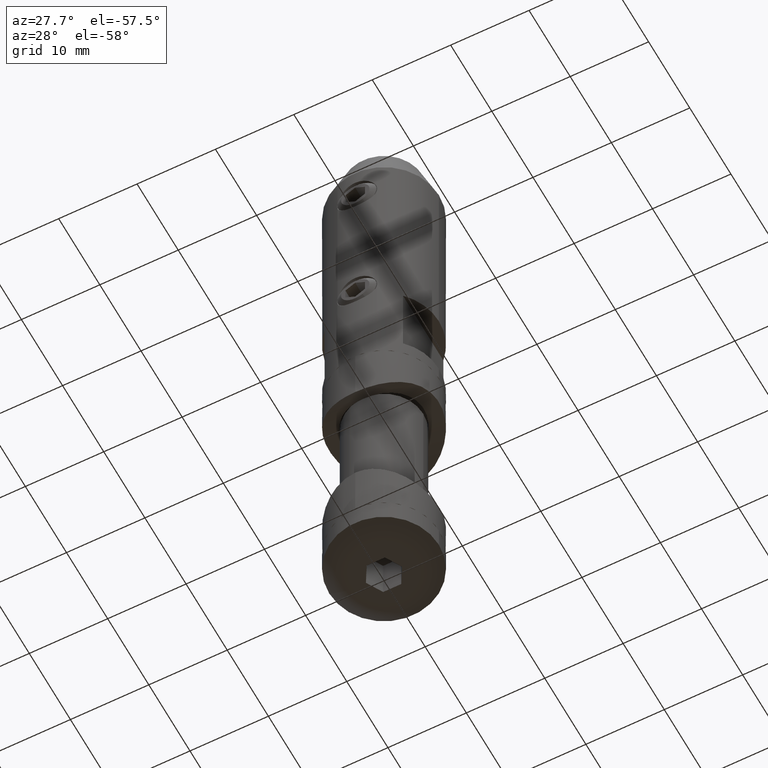
[diagram: clean part render]
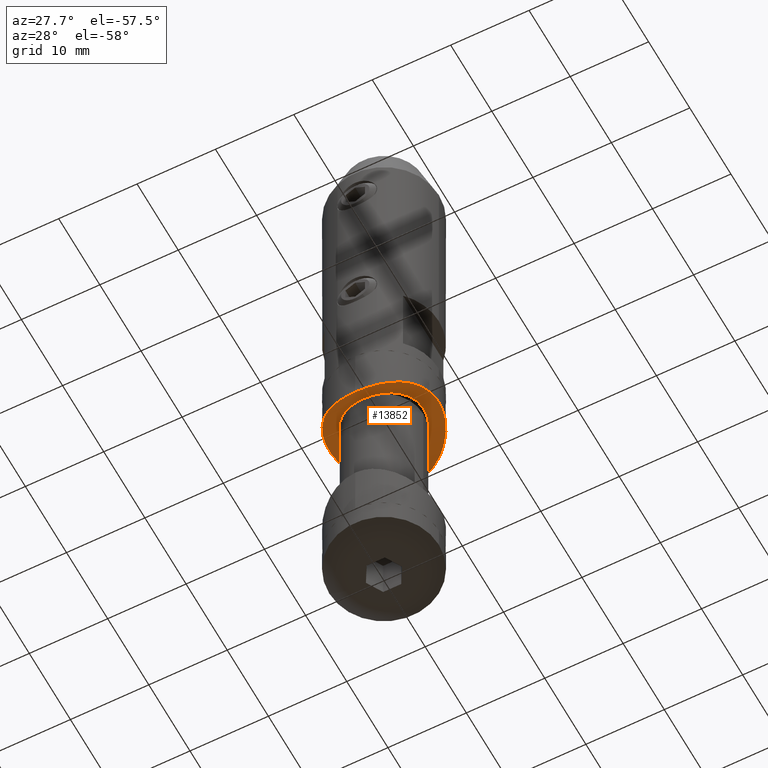
[diagram: same view with one face highlighted and labeled with its STEP entity id]
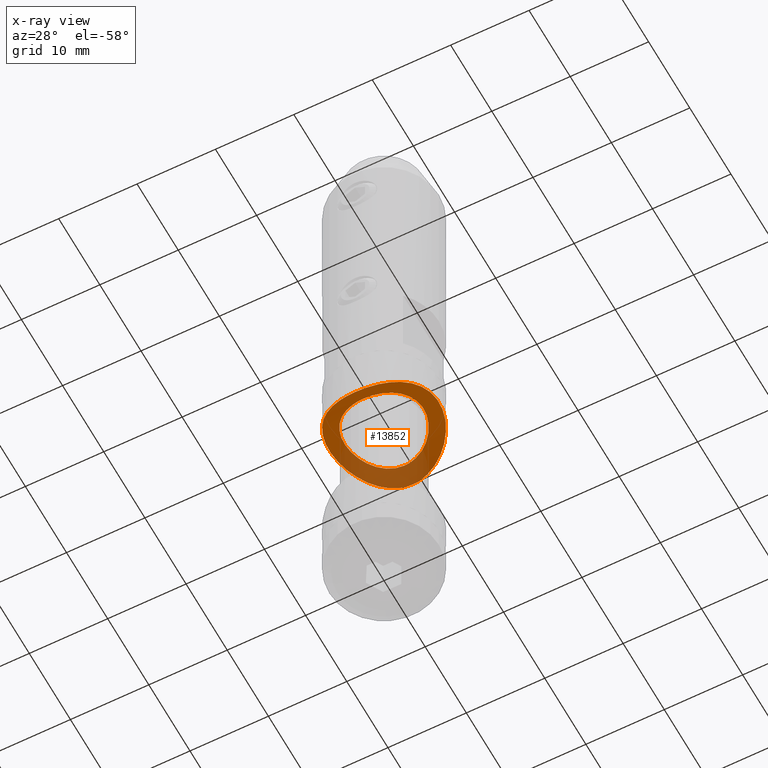
[diagram: x-ray of the same camera — body ghosted, the highlighted face saturated]
A machine part, auxiliary view. The second image highlights one B-rep face of the part: STEP entity #13852.
The next image is the same camera in x-ray: the body ghosted, the highlighted face saturated — about 37% of this face is hidden behind the body in this view.
In plain terms, the highlighted cylindrical surface (partial cylindrical patch) has radius 11 mm, axis along (-1, 0, 0).
Its self-contained STEP definition (entity closure, byte-faithful):
#58 = CARTESIAN_POINT ( 'NONE',  ( 0.8347342870917892066, 4.983315160867518578, 5.030493681191865463 ) ) ;
#132 = CARTESIAN_POINT ( 'NONE',  ( -1.798898134684533190, 4.721600766779466163, 5.146994634045535477 ) ) ;
#161 = CARTESIAN_POINT ( 'NONE',  ( 4.302957743383328371, -5.539326587374739042, 5.868803495781969026 ) ) ;
#223 = CARTESIAN_POINT ( 'NONE',  ( -7.000000000000284217, -0.4763624378593324660, 7.514718625761431348 ) ) ;
#288 = VERTEX_POINT ( 'NONE', #7388 ) ;
#433 = CARTESIAN_POINT ( 'NONE',  ( -3.738745410604529695, -5.922185817696358434, 5.652949233903943771 ) ) ;
#597 = CARTESIAN_POINT ( 'NONE',  ( 5.114907288801578744, 4.784046224947594794, 6.259948611788000328 ) ) ;
#649 = CYLINDRICAL_SURFACE ( 'NONE', #12547, 11.00000000000000000 ) ;
#664 = CARTESIAN_POINT ( 'NONE',  ( 4.531019783210669338, -2.254405599126572124, 5.975539323838369832 ) ) ;
#727 = CARTESIAN_POINT ( 'NONE',  ( 2.546797807824404902, -4.372993003360093667, 5.295211678164507774 ) ) ;
#730 = CARTESIAN_POINT ( 'NONE',  ( 2.301034675769405347, 6.626992172020193195, 5.234467967776039288 ) ) ;
#799 = CARTESIAN_POINT ( 'NONE',  ( 6.763632749686718348, 1.862951637489550949, 7.324308792532637113 ) ) ;
#1072 = CARTESIAN_POINT ( 'NONE',  ( -5.050000000000141931, -9.244463733058732095E-30, 6.227717769118616964 ) ) ;
#1191 = CARTESIAN_POINT ( 'NONE',  ( -4.885038734902628299, 1.322631328272658724, 6.143946356408126697 ) ) ;
#1445 = CARTESIAN_POINT ( 'NONE',  ( 3.346012908547002063, 3.796378999838738277, 5.518435895400592983 ) ) ;
#1721 = CARTESIAN_POINT ( 'NONE',  ( 6.812274545733001396, -1.627136497544569682, 7.363074465144524794 ) ) ;
#1794 = CARTESIAN_POINT ( 'NONE',  ( -7.000000000000284217, -9.244463733058732095E-30, 7.514718625761432236 ) ) ;
#1809 = CARTESIAN_POINT ( 'NONE',  ( -6.765964257790813896, 1.854074947819542851, 7.326140929028419180 ) ) ;
#1858 = CARTESIAN_POINT ( 'NONE',  ( 6.999999999999996447, -0.4740943276049978117, 7.514718625761454440 ) ) ;
#1872 = CARTESIAN_POINT ( 'NONE',  ( -7.000000000000284217, -9.244463733058732095E-30, 7.514718625761432236 ) ) ;
#2149 = CARTESIAN_POINT ( 'NONE',  ( 7.000000000000004441, -5.723021685032325300E-14, 7.514718625761387827 ) ) ;
#2218 = CARTESIAN_POINT ( 'NONE',  ( -1.325247053648522133, -4.884574948943930295, 5.075116484067814682 ) ) ;
#2221 = CARTESIAN_POINT ( 'NONE',  ( 1.849171311116351024, 6.767508011685089642, 5.146708090684417591 ) ) ;
#2297 = CARTESIAN_POINT ( 'NONE',  ( -0.4907799386418351673, 6.998898104596894321, 5.000701205087874079 ) ) ;
#2372 = CARTESIAN_POINT ( 'NONE',  ( -0.3309924527476572620, -5.050159809286224544, 4.999926633016219313 ) ) ;
#2374 = CARTESIAN_POINT ( 'NONE',  ( 7.000000000000002665, 0.2377497690112485296, 7.514718625761418025 ) ) ;
#2701 = VERTEX_POINT ( 'NONE', #3272 ) ;
#3074 = CARTESIAN_POINT ( 'NONE',  ( 5.049999999999999822, 6.183411203961693989E-16, 6.227717769118619628 ) ) ;
#3133 = CARTESIAN_POINT ( 'NONE',  ( 4.377306081229053625, 2.539582479675894788, 5.906521603887060046 ) ) ;
#3151 = EDGE_LOOP ( 'NONE', ( #5191, #11734 ) ) ;
#3190 = CARTESIAN_POINT ( 'NONE',  ( 1.644014135615404992, 4.786504532583993665, 5.119070170647719742 ) ) ;
#3272 = CARTESIAN_POINT ( 'NONE',  ( -5.050000000000141931, -9.244463733058732095E-30, 6.227717769118616964 ) ) ;
#3296 = CARTESIAN_POINT ( 'NONE',  ( -6.052226204783508479, -3.545188428060873420, 6.809991856603720528 ) ) ;
#3354 = CARTESIAN_POINT ( 'NONE',  ( -0.9295944337245134470, -6.941983683191890186, 5.036843005532409379 ) ) ;
#3418 = CARTESIAN_POINT ( 'NONE',  ( 5.277947180286361117, -4.619883079932325387, 6.342453332013024081 ) ) ;
#3489 = CARTESIAN_POINT ( 'NONE',  ( 5.558983717407167902, -4.277416846365695413, 6.503500197077546119 ) ) ;
#3710 = CARTESIAN_POINT ( 'NONE',  ( 4.010594253488467764, -3.086069846067138300, 5.755306121692768784 ) ) ;
#3712 = CARTESIAN_POINT ( 'NONE',  ( 4.300644525004608809, 5.541751699449870117, 5.867539799732574224 ) ) ;
#3849 = CARTESIAN_POINT ( 'NONE',  ( 1.644815588714458876, -4.785966290671257006, 5.119291178394015596 ) ) ;
#3851 = CARTESIAN_POINT ( 'NONE',  ( 6.904112164166043897, 1.177949242828133514, 7.436307939935931977 ) ) ;
#3903 = CARTESIAN_POINT ( 'NONE',  ( 7.000000000000004441, -5.723021685032325300E-14, 7.514718625761387827 ) ) ;
#3995 = CARTESIAN_POINT ( 'NONE',  ( -5.015336873282027597, -0.6775477329682444427, 6.209604506756885911 ) ) ;
#4034 = B_SPLINE_CURVE_WITH_KNOTS ( 'NONE', 3,
 ( #11201, #1858, #12859, #1721, #15865, #8144, #12789, #11144, #6490, #3489, #3418, #14345, #161, #8002, #15928, #4774, #17489, #14412, #17354, #6619, #5033, #3354, #9580, #17292, #12657, #14155, #11349, #17552, #433, #8225, #12597, #15736, #6356, #7941, #18855, #3296, #14216, #4834, #6420, #18925, #223, #1794 ),
 .UNSPECIFIED., .F., .F.,
 ( 4, 2, 2, 2, 2, 2, 2, 2, 2, 2, 2, 2, 2, 2, 2, 2, 2, 2, 2, 2, 4 ),
 ( 0.02253123587157023974, 0.02393527655227489434, 0.02463729689262722511, 0.02533931723297955241, 0.02674335791368420701, 0.02814739859438886507, 0.02955143927509352314, 0.03095547995579818121, 0.03235952063650283927, 0.03376356131720749387, 0.03446558165755982117, 0.03516760199791215541, 0.03657164267861681001, 0.03727366301896913731, 0.03797568335932146460, 0.03867770369967379190, 0.03937972404002612614, 0.04078376472073078074, 0.04218780540143544922, 0.04359184608214010381, 0.04499588676284476535 ),
 .UNSPECIFIED. ) ;
#4060 = CARTESIAN_POINT ( 'NONE',  ( -4.523421857255739198, -2.251258128524327606, 5.972741108334475690 ) ) ;
#4556 = CARTESIAN_POINT ( 'NONE',  ( 0.6694115758952835504, 5.008267232178823747, 5.019106629645234463 ) ) ;
#4749 = CARTESIAN_POINT ( 'NONE',  ( 5.017264493785554613, 0.6656149110418781989, 6.210587786190290061 ) ) ;
#4774 = CARTESIAN_POINT ( 'NONE',  ( 2.313820538208837707, -6.622735270713296707, 5.237110732547023417 ) ) ;
#4834 = CARTESIAN_POINT ( 'NONE',  ( -6.624192190383780598, -2.307918029003276583, 7.215481015150577271 ) ) ;
#4916 = CARTESIAN_POINT ( 'NONE',  ( -6.273426768740709925, 3.138526888149929306, 6.961660900673267705 ) ) ;
#5033 = CARTESIAN_POINT ( 'NONE',  ( -0.4616743109381308829, -6.988715196624761816, 5.007192627578020527 ) ) ;
#5112 = CARTESIAN_POINT ( 'NONE',  ( -6.951654864948971557, 0.9435893643243959961, 7.474239144838221272 ) ) ;
#5191 = ORIENTED_EDGE ( 'NONE', *, *, #6446, .T. ) ;
#5194 = CARTESIAN_POINT ( 'NONE',  ( 0.2214254515694320802, 7.000523600136869362, 4.999666800438288483 ) ) ;
#5261 = CARTESIAN_POINT ( 'NONE',  ( 0.6698125511099018992, -5.008192777544311802, 5.019140554059224435 ) ) ;
#5263 = CARTESIAN_POINT ( 'NONE',  ( 1.161837405269506185, 6.906864965397544687, 5.059091500456442958 ) ) ;
#5334 = CARTESIAN_POINT ( 'NONE',  ( -2.546378848194947420, -4.373241396607924436, 5.295110327002082506 ) ) ;
#5407 = CARTESIAN_POINT ( 'NONE',  ( 6.987680589103055340, 0.4774160419172169822, 7.504514137652255279 ) ) ;
#5486 = CARTESIAN_POINT ( 'NONE',  ( -4.649793783628306976, 5.251334342229204033, 6.024906302003863345 ) ) ;
#5917 = CARTESIAN_POINT ( 'NONE',  ( -7.000000000000284217, -9.244463733058732095E-30, 7.514718625761432236 ) ) ;
#5931 = CARTESIAN_POINT ( 'NONE',  ( -5.050000000000141931, -9.244463733058732095E-30, 6.227717769118616964 ) ) ;
#6059 = CARTESIAN_POINT ( 'NONE',  ( -1.324074876012344193, 4.876188760810965306, 5.078792124039382294 ) ) ;
#6109 = B_SPLINE_CURVE_WITH_KNOTS ( 'NONE', 3,
 ( #1872, #9592, #5112, #1809, #14302, #4916, #12807, #6997, #10083, #5486, #19440, #8371, #6926, #11654, #16231, #19294, #2297, #5194, #8514, #14805, #5263, #2221, #730, #13306, #13233, #3712, #16150, #597, #17712, #9941, #14589, #13158, #6781, #11506, #799, #3851, #13007, #5407, #2374, #2149 ),
 .UNSPECIFIED., .F., .F.,
 ( 4, 2, 2, 2, 2, 2, 2, 2, 2, 2, 2, 2, 2, 2, 2, 2, 2, 2, 2, 4 ),
 ( 0.000000000000000000, 0.001408202241973139767, 0.002816404483946279534, 0.004224606725919418868, 0.005632808967892559068, 0.007041011209865698402, 0.008449213451838837735, 0.009857415693811977936, 0.01126561793578511814, 0.01196971905677168650, 0.01267382017775825660, 0.01408202241973139680, 0.01549022466170453700, 0.01689842690367767547, 0.01760252802466424557, 0.01830662914565081567, 0.01971483138762395587, 0.02112303362959709954, 0.02182713475058366964, 0.02253123587157023974 ),
 .UNSPECIFIED. ) ;
#6130 = CARTESIAN_POINT ( 'NONE',  ( 2.547008003639354090, 4.372918478376748297, 5.295247978829205948 ) ) ;
#6356 = CARTESIAN_POINT ( 'NONE',  ( -4.801024735240244645, -5.099024646223536017, 6.101446781323081936 ) ) ;
#6420 = CARTESIAN_POINT ( 'NONE',  ( -6.761740977554861587, -1.870689667826440639, 7.322816668642889049 ) ) ;
#6446 = EDGE_CURVE ( 'NONE', #2701, #288, #10794, .T. ) ;
#6490 = CARTESIAN_POINT ( 'NONE',  ( 6.056531478097463506, -3.537940262749728948, 6.812822254243739550 ) ) ;
#6619 = CARTESIAN_POINT ( 'NONE',  ( -0.2271689663048469532, -7.000260248264503993, 4.999834387531060464 ) ) ;
#6781 = CARTESIAN_POINT ( 'NONE',  ( 6.269507857867425926, 3.146234964335936635, 6.958936000710156833 ) ) ;
#6926 = CARTESIAN_POINT ( 'NONE',  ( -3.163060452404388823, 6.261350458648621498, 5.455611984914543022 ) ) ;
#6997 = CARTESIAN_POINT ( 'NONE',  ( -5.557449205181134388, 4.279761006885696162, 6.502534725485556777 ) ) ;
#7057 = CARTESIAN_POINT ( 'NONE',  ( -3.088759460282020086, -4.008597079784670392, 5.438831828528124746 ) ) ;
#7388 = CARTESIAN_POINT ( 'NONE',  ( 5.049999999999999822, 6.183411203961693989E-16, 6.227717769118619628 ) ) ;
#7517 = CARTESIAN_POINT ( 'NONE',  ( -4.375843760810009364, 2.542091483315129352, 5.905885472017380344 ) ) ;
#7649 = CARTESIAN_POINT ( 'NONE',  ( 1.324288223313524693, 4.884629565474531532, 5.075089861455793105 ) ) ;
#7845 = CARTESIAN_POINT ( 'NONE',  ( -1.643346076912448162, 4.778054497370530562, 5.122253476995908272 ) ) ;
#7911 = CARTESIAN_POINT ( 'NONE',  ( -0.3381648408169122266, 5.049801814264135658, 5.000090985257237719 ) ) ;
#7941 = CARTESIAN_POINT ( 'NONE',  ( -5.273991696881241253, -4.624345898174418323, 6.340300785909568582 ) ) ;
#7977 = DIRECTION ( 'NONE',  ( -1.183291357831474618E-30, 1.000000000000000000, 3.004563560701657287E-35 ) ) ;
#8002 = CARTESIAN_POINT ( 'NONE',  ( 3.563861619915402290, -6.041396753817215526, 5.585804001147470998 ) ) ;
#8144 = CARTESIAN_POINT ( 'NONE',  ( 6.617060154661993820, -2.295148674237948327, 7.212399313888086638 ) ) ;
#8225 = CARTESIAN_POINT ( 'NONE',  ( -4.110904691520238963, -5.670182071316340000, 5.795092385586124273 ) ) ;
#8359 = EDGE_CURVE ( 'NONE', #8442, #18681, #4034, .T. ) ;
#8367 = CARTESIAN_POINT ( 'NONE',  ( 5.049999999999999822, -0.3332332835288888129, 6.227717769118636504 ) ) ;
#8371 = CARTESIAN_POINT ( 'NONE',  ( -3.558049577198596491, 6.044979889134974194, 5.583740064937725123 ) ) ;
#8442 = VERTEX_POINT ( 'NONE', #3903 ) ;
#8514 = CARTESIAN_POINT ( 'NONE',  ( 0.4606742574264122703, 6.988804917288322649, 5.007135663298367234 ) ) ;
#8656 = CARTESIAN_POINT ( 'NONE',  ( -3.804640107169164231, -3.336934319767951074, 5.675999726451558480 ) ) ;
#8726 = CARTESIAN_POINT ( 'NONE',  ( -4.786646975128507009, -1.643126827578287319, 6.095059610140738826 ) ) ;
#8932 = B_SPLINE_CURVE_WITH_KNOTS ( 'NONE', 3,
 ( #11712, #8367, #13003, #16145, #13229, #664, #11576, #3710, #17919, #14867, #19291, #727, #14656, #3849, #10009, #19504, #5261, #14725, #11652, #2372, #16226, #2218, #16443, #13156, #5334, #7057, #17991, #8656, #9867, #19654, #16707, #4060, #10422, #8726, #18195, #3995, #14933, #1072 ),
 .UNSPECIFIED., .F., .F.,
 ( 4, 2, 2, 2, 2, 2, 2, 2, 2, 2, 2, 2, 2, 2, 2, 2, 2, 2, 4 ),
 ( 0.01601497281934123607, 0.01701466347767280687, 0.01801435413600437768, 0.01901404479433595196, 0.02001373545266751930, 0.02101342611099909358, 0.02201311676933066439, 0.02301280742766223519, 0.02351265275682802580, 0.02401249808599380947, 0.02501218874432538028, 0.02601187940265695109, 0.02701157006098852537, 0.02801126071932009617, 0.02901095137765166698, 0.02951079670681745412, 0.03001064203598324126, 0.03101033269431481207, 0.03201002335264638288 ),
 .UNSPECIFIED. ) ;
#9032 = CARTESIAN_POINT ( 'NONE',  ( -5.050000000000141043, 0.3388950582306048398, 6.227717769118617852 ) ) ;
#9089 = CARTESIAN_POINT ( 'NONE',  ( -4.009961088409433216, 3.087142659159995084, 5.755032025794676542 ) ) ;
#9296 = CARTESIAN_POINT ( 'NONE',  ( -1.160357236858920338, 4.917717042105977931, 5.060138163516199938 ) ) ;
#9487 = CARTESIAN_POINT ( 'NONE',  ( 3.090260536766618049, 4.007487442779405384, 5.439258765585370803 ) ) ;
#9580 = CARTESIAN_POINT ( 'NONE',  ( -1.164191950391297414, -6.906543958800002159, 5.059295683047658088 ) ) ;
#9592 = CARTESIAN_POINT ( 'NONE',  ( -7.000000000000284217, 0.4777743709310715570, 7.514718625761435788 ) ) ;
#9687 = CARTESIAN_POINT ( 'NONE',  ( 2.619264724366640760E-28, -7.000000000000284217, 16.00000000000000000 ) ) ;
#9867 = CARTESIAN_POINT ( 'NONE',  ( -4.011150246812941411, -3.085277370897202331, 5.755531755659331949 ) ) ;
#9941 = CARTESIAN_POINT ( 'NONE',  ( 5.548354116399063507, 4.273845609058724015, 6.500402019132683229 ) ) ;
#10009 = CARTESIAN_POINT ( 'NONE',  ( 1.329451371967022011, -4.883332328652869592, 5.075672463676657031 ) ) ;
#10083 = CARTESIAN_POINT ( 'NONE',  ( -5.275968328933357654, 4.621823535817484618, 6.341468294499327918 ) ) ;
#10120 = ORIENTED_EDGE ( 'NONE', *, *, #8359, .F. ) ;
#10422 = CARTESIAN_POINT ( 'NONE',  ( -4.595284630925085878, -2.100761271488811310, 6.005585684564774596 ) ) ;
#10781 = CARTESIAN_POINT ( 'NONE',  ( 4.011643289364756448, 3.084964476089852248, 5.755692664681569148 ) ) ;
#10794 = B_SPLINE_CURVE_WITH_KNOTS ( 'NONE', 3,
 ( #5931, #9032, #19906, #1191, #15314, #16876, #7517, #9089, #20033, #15581, #17137, #12568, #15439, #132, #7845, #6059, #9296, #17204, #7911, #14074, #12375, #4556, #58, #7649, #3190, #17072, #6130, #9487, #1445, #10987, #10781, #3133, #18637, #18826, #14129, #4749, #11055, #3074 ),
 .UNSPECIFIED., .F., .F.,
 ( 4, 2, 2, 2, 2, 2, 2, 2, 2, 2, 2, 2, 2, 2, 2, 2, 2, 2, 4 ),
 ( 0.000000000000000000, 0.001000935801208827905, 0.002001871602417655809, 0.003002807403626483497, 0.004003743204835311618, 0.005004679006044138873, 0.006005614807252965259, 0.006506082707857379320, 0.007006550608461791646, 0.008007486409670618033, 0.008507954310275031226, 0.009008422210879444419, 0.01000935801208827428, 0.01101029381329710240, 0.01201122961450592878, 0.01301216541571475864, 0.01401310121692358503, 0.01501403701813241315, 0.01601497281934123607 ),
 .UNSPECIFIED. ) ;
#10987 = CARTESIAN_POINT ( 'NONE',  ( 3.805383662286298652, 3.335768438813500048, 5.676335745202010230 ) ) ;
#11055 = CARTESIAN_POINT ( 'NONE',  ( 5.050000000000001599, 0.3336483349710467339, 6.227717769118606306 ) ) ;
#11144 = CARTESIAN_POINT ( 'NONE',  ( 6.273866739672759429, -3.137677219901788828, 6.961965779511344543 ) ) ;
#11201 = CARTESIAN_POINT ( 'NONE',  ( 7.000000000000004441, -5.723021685032325300E-14, 7.514718625761387827 ) ) ;
#11349 = CARTESIAN_POINT ( 'NONE',  ( -3.144431679818662229, -6.258171158556381286, 5.456902873018733224 ) ) ;
#11506 = CARTESIAN_POINT ( 'NONE',  ( 6.622956682125623828, 2.311269784633307012, 7.214556823597193969 ) ) ;
#11576 = CARTESIAN_POINT ( 'NONE',  ( 4.373964812536534019, -2.545019681576510706, 5.905097784275818995 ) ) ;
#11652 = CARTESIAN_POINT ( 'NONE',  ( 0.1691402037588732310, -5.049919218883492711, 5.000037085872841125 ) ) ;
#11654 = CARTESIAN_POINT ( 'NONE',  ( -2.320867787877572308, 6.619896804541308022, 5.238836366385117849 ) ) ;
#11712 = CARTESIAN_POINT ( 'NONE',  ( 5.049999999999999822, 6.183411203961693989E-16, 6.227717769118619628 ) ) ;
#11734 = ORIENTED_EDGE ( 'NONE', *, *, #18167, .T. ) ;
#11823 = ORIENTED_EDGE ( 'NONE', *, *, #17201, .F. ) ;
#12325 = EDGE_LOOP ( 'NONE', ( #11823, #10120 ) ) ;
#12375 = CARTESIAN_POINT ( 'NONE',  ( 0.3343144970693806561, 5.041734457893236154, 5.003802253228930574 ) ) ;
#12547 = AXIS2_PLACEMENT_3D ( 'NONE', #9687, #7977, #18896 ) ;
#12568 = CARTESIAN_POINT ( 'NONE',  ( -2.542093021732978020, 4.375911011357829672, 5.294036203197613588 ) ) ;
#12597 = CARTESIAN_POINT ( 'NONE',  ( -4.289978481396708787, -5.535894384654330480, 5.869272368477476576 ) ) ;
#12607 = FACE_OUTER_BOUND ( 'NONE', #12325, .T. ) ;
#12657 = CARTESIAN_POINT ( 'NONE',  ( -2.300155943045375739, -6.627297524066506185, 5.234279387161443253 ) ) ;
#12789 = CARTESIAN_POINT ( 'NONE',  ( 6.538584528614772573, -2.509684823444015223, 7.153600790624825123 ) ) ;
#12807 = CARTESIAN_POINT ( 'NONE',  ( -6.058683391609648972, 3.534678415989362055, 6.814171574157921185 ) ) ;
#12859 = CARTESIAN_POINT ( 'NONE',  ( 6.952353740326868703, -0.9398979421706252779, 7.474799345840276388 ) ) ;
#13003 = CARTESIAN_POINT ( 'NONE',  ( 5.016145469534236234, -0.6723523386354358644, 6.210017951011605142 ) ) ;
#13007 = CARTESIAN_POINT ( 'NONE',  ( 6.939710044015401813, 0.9465889273593277586, 7.465283568994790286 ) ) ;
#13156 = CARTESIAN_POINT ( 'NONE',  ( -2.252167218506140323, -4.532059358613503619, 5.228564578687819875 ) ) ;
#13158 = CARTESIAN_POINT ( 'NONE',  ( 6.056392610917076702, 3.538246314894518463, 6.812717904675321456 ) ) ;
#13229 = CARTESIAN_POINT ( 'NONE',  ( 4.786933310066603831, -1.642484205767125616, 6.095191995362422510 ) ) ;
#13233 = CARTESIAN_POINT ( 'NONE',  ( 3.547949583967521470, 6.051331174083297348, 5.580098523014664913 ) ) ;
#13306 = CARTESIAN_POINT ( 'NONE',  ( 3.148837931513962740, 6.268700464065021016, 5.451243665863186649 ) ) ;
#13852 = ADVANCED_FACE ( 'NONE', ( #16778, #12607 ), #649, .F. ) ;
#14074 = CARTESIAN_POINT ( 'NONE',  ( 0.1646233988540177495, 5.050097780466965780, 4.999955109882697535 ) ) ;
#14129 = CARTESIAN_POINT ( 'NONE',  ( 4.884397924061446794, 1.326138427852358914, 6.143621790337340016 ) ) ;
#14155 = CARTESIAN_POINT ( 'NONE',  ( -2.936049864269827836, -6.358660130344079953, 5.396817665741710179 ) ) ;
#14216 = CARTESIAN_POINT ( 'NONE',  ( -6.270293628163780220, -3.144809313829456610, 6.959473810284622530 ) ) ;
#14302 = CARTESIAN_POINT ( 'NONE',  ( -6.626362017835187856, 2.301643078103948525, 7.217131248517889119 ) ) ;
#14345 = CARTESIAN_POINT ( 'NONE',  ( 4.647052587015751079, -5.254041145979729599, 6.023535880095139738 ) ) ;
#14412 = CARTESIAN_POINT ( 'NONE',  ( 0.9561356181228538587, -6.950147116260164459, 5.031903391544506832 ) ) ;
#14589 = CARTESIAN_POINT ( 'NONE',  ( 5.682708424258758662, 4.093481962274591268, 6.580428040297160663 ) ) ;
#14656 = CARTESIAN_POINT ( 'NONE',  ( 2.252283018997188524, -4.531899475788997655, 5.228627571948439190 ) ) ;
#14725 = CARTESIAN_POINT ( 'NONE',  ( 0.3359583006180752451, -5.041604483784619006, 5.003861812191657599 ) ) ;
#14805 = CARTESIAN_POINT ( 'NONE',  ( 0.9299979417929800096, 6.941953527043351890, 5.036862177057030543 ) ) ;
#14867 = CARTESIAN_POINT ( 'NONE',  ( 3.339582095800435635, -3.802119749626663658, 5.516360912281424334 ) ) ;
#14933 = CARTESIAN_POINT ( 'NONE',  ( -5.050000000000141931, -0.3384734799761519586, 6.227717769118616076 ) ) ;
#15314 = CARTESIAN_POINT ( 'NONE',  ( -4.785809054425989473, 1.645417138503377563, 6.094657659906695280 ) ) ;
#15439 = CARTESIAN_POINT ( 'NONE',  ( -2.253997665356861191, 4.531025019116708741, 5.228995663625569890 ) ) ;
#15581 = CARTESIAN_POINT ( 'NONE',  ( -3.341941475565662678, 3.799909755860048755, 5.517142028585781510 ) ) ;
#15736 = CARTESIAN_POINT ( 'NONE',  ( -4.634687890405571942, -5.250686637709595317, 6.022263489474741327 ) ) ;
#15865 = CARTESIAN_POINT ( 'NONE',  ( 6.753785770811216338, -1.854607853229240932, 7.317040327690201629 ) ) ;
#15928 = CARTESIAN_POINT ( 'NONE',  ( 3.165976961786824972, -6.260269788629083898, 5.456274816559064433 ) ) ;
#16145 = CARTESIAN_POINT ( 'NONE',  ( 4.884124368318618181, -1.326311499457652365, 6.143489814044753139 ) ) ;
#16150 = CARTESIAN_POINT ( 'NONE',  ( 4.644332166944091789, 5.256203776964100349, 6.022340495122413095 ) ) ;
#16226 = CARTESIAN_POINT ( 'NONE',  ( -0.6665721100508192887, -5.017074227790246255, 5.015235951009542781 ) ) ;
#16231 = CARTESIAN_POINT ( 'NONE',  ( -1.868620718978700967, 6.762048655295059163, 5.150117211037595233 ) ) ;
#16443 = CARTESIAN_POINT ( 'NONE',  ( -1.642026639668769938, -4.787020756663585175, 5.118831554918820359 ) ) ;
#16707 = CARTESIAN_POINT ( 'NONE',  ( -4.367480228621802851, -2.540595385444810450, 5.903843175159087409 ) ) ;
#16778 = FACE_BOUND ( 'NONE', #3151, .T. ) ;
#16876 = CARTESIAN_POINT ( 'NONE',  ( -4.531026148141392262, 2.254144607154875857, 5.975551026379023689 ) ) ;
#17072 = CARTESIAN_POINT ( 'NONE',  ( 2.258347429815220853, 4.529158310856153946, 5.229796505374744164 ) ) ;
#17137 = CARTESIAN_POINT ( 'NONE',  ( -3.088587391594380449, 4.008922802318650724, 5.438725187077531054 ) ) ;
#17201 = EDGE_CURVE ( 'NONE', #18681, #8442, #6109, .T. ) ;
#17204 = CARTESIAN_POINT ( 'NONE',  ( -0.6693808591222187854, 5.016563421192095973, 5.015467559364057415 ) ) ;
#17292 = CARTESIAN_POINT ( 'NONE',  ( -1.857958556001904737, -6.765409035154463346, 5.148022972862459135 ) ) ;
#17354 = CARTESIAN_POINT ( 'NONE',  ( 0.4779855654310720681, -6.999466188930153265, 5.000339697825916474 ) ) ;
#17489 = CARTESIAN_POINT ( 'NONE',  ( 1.872241291340982938, -6.761172443067881233, 5.150665869296223498 ) ) ;
#17552 = CARTESIAN_POINT ( 'NONE',  ( -3.545662890074149143, -6.039903269820232623, 5.584980927143774032 ) ) ;
#17712 = CARTESIAN_POINT ( 'NONE',  ( 5.264305234839995684, 4.619207733526296877, 6.340099089871694460 ) ) ;
#17919 = CARTESIAN_POINT ( 'NONE',  ( 3.801011353465558962, -3.340843584473519368, 5.674700498922186753 ) ) ;
#17991 = CARTESIAN_POINT ( 'NONE',  ( -3.340264151766876743, -3.801717032598098900, 5.516541439499588861 ) ) ;
#18167 = EDGE_CURVE ( 'NONE', #288, #2701, #8932, .T. ) ;
#18195 = CARTESIAN_POINT ( 'NONE',  ( -4.883504680067818349, -1.328178046313251537, 6.143183581583119057 ) ) ;
#18637 = CARTESIAN_POINT ( 'NONE',  ( 4.533870929477297196, 2.248113447923592467, 5.976853787374134086 ) ) ;
#18681 = VERTEX_POINT ( 'NONE', #5917 ) ;
#18826 = CARTESIAN_POINT ( 'NONE',  ( 4.786500833556129209, 1.642987964125336209, 6.095008562588192014 ) ) ;
#18855 = CARTESIAN_POINT ( 'NONE',  ( -5.554878004119144563, -4.282654945670762103, 6.501104165803741175 ) ) ;
#18896 = DIRECTION ( 'NONE',  ( 3.084497176564052154E-35, 0.000000000000000000, 1.000000000000000000 ) ) ;
#18925 = CARTESIAN_POINT ( 'NONE',  ( -6.951047740780801121, -0.9505557249542421205, 7.473712008211712998 ) ) ;
#19291 = CARTESIAN_POINT ( 'NONE',  ( 3.089049369178539894, -4.008368854802810688, 5.438918327935222230 ) ) ;
#19294 = CARTESIAN_POINT ( 'NONE',  ( -0.9560197849101003120, 6.950041120657822091, 5.031967993460270350 ) ) ;
#19440 = CARTESIAN_POINT ( 'NONE',  ( -4.301019072167645341, 5.541004745955334876, 5.867901364009729726 ) ) ;
#19504 = CARTESIAN_POINT ( 'NONE',  ( 0.8377017598554725719, -4.982843029552292080, 5.030708818280036354 ) ) ;
#19654 = CARTESIAN_POINT ( 'NONE',  ( -4.283100489718981052, -2.680296790364548265, 5.867642713912912811 ) ) ;
#19906 = CARTESIAN_POINT ( 'NONE',  ( -5.016244192959842252, 0.6710076516881354758, 6.210071958208496667 ) ) ;
#20033 = CARTESIAN_POINT ( 'NONE',  ( -3.800969888286348741, 3.340735680524099305, 5.674714919999138907 ) ) ;